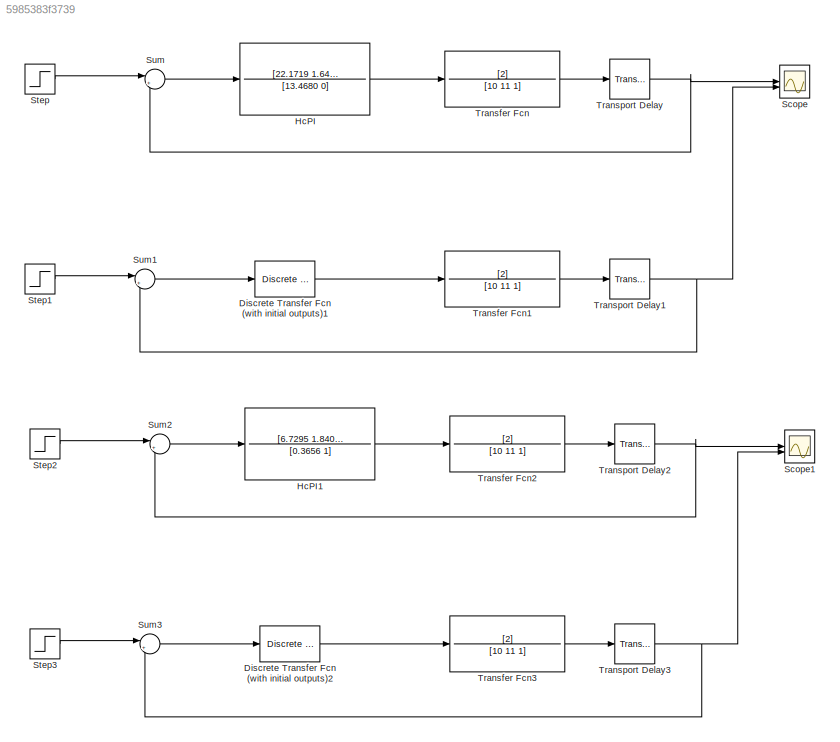
MODEL slx_5985383f3739
KIND model
CONFIG AbsTol = auto
CONFIG EnableMultiTasking = off
CONFIG FixedStep = auto
CONFIG MaxStep = auto
CONFIG MinStep = auto
CONFIG RelTol = 1e-3
CONFIG SampleTimeConstraint = Unconstrained
CONFIG SolverName = VariableStepAuto
CONFIG StartTime = 0.0
CONFIG StopTime = 50
BLOCK [Reference] Discrete Transfer Fcn (with initial outputs)1  REF=simulink_extras/Additional
Discrete/Discrete
Transfer Fcn
(with initial outputs)
  SourceBlock = simulink_extras/Additional\nDiscrete/Discrete\nTransfer Fcn\n(with initial outputs)
  SourceType = Discrete Transfer Function with Initial Outputs
BLOCK [Reference] Discrete Transfer Fcn (with initial outputs)2  REF=simulink_extras/Additional
Discrete/Discrete
Transfer Fcn
(with initial outputs)
  SourceBlock = simulink_extras/Additional\nDiscrete/Discrete\nTransfer Fcn\n(with initial outputs)
  SourceType = Discrete Transfer Function with Initial Outputs
BLOCK [TransferFcn] HcPI
  Denominator = [13.4680 0]
  Numerator = [22.1719 1.6463]
BLOCK [TransferFcn] HcPI1
  Denominator = [0.3656 1]
  Numerator = [6.7295 1.8408]
BLOCK [Scope] Scope
  Floating = off
  NumInputPorts = 2
  ScopeSpecificationString = Simulink.scopes.TimeScopeBlockCfg('CurrentConfiguration', extmgr.ConfigurationSet(extmgr.Configuration('Core','General UI',true),extmgr.Configuration('Core','Source UI',true),extmgr.Configuration('Sources','WiredSimulink',true),extmgr.Configuration('Visuals','Time Domain',true,'SerializedDisplays',{struct('MinYLimReal','-0.13382','MaxYLimReal','1.20434','YLabelReal','','MinYLimMag','0.00000','MaxY...<+1410ch>
BLOCK [Scope] Scope1
  Floating = off
  NumInputPorts = 2
  ScopeSpecificationString = Simulink.scopes.TimeScopeBlockCfg('CurrentConfiguration', extmgr.ConfigurationSet(extmgr.Configuration('Core','General UI',true),extmgr.Configuration('Core','Source UI',true),extmgr.Configuration('Sources','WiredSimulink',true,'DataLoggingVariableName','ScopeData1'),extmgr.Configuration('Visuals','Time Domain',true,'SerializedDisplays',{struct('MinYLimReal','-0.15083','MaxYLimReal','1.35745','YLab...<+1449ch>
BLOCK [Step] Step
  SampleTime = 0
BLOCK [Step] Step1
  SampleTime = 0
BLOCK [Step] Step2
  SampleTime = 0
BLOCK [Step] Step3
  SampleTime = 0
BLOCK [Sum] Sum
  Inputs = |+-
BLOCK [Sum] Sum1
  Inputs = |+-
BLOCK [Sum] Sum2
  Inputs = |+-
BLOCK [Sum] Sum3
  Inputs = |+-
BLOCK [TransferFcn] Transfer Fcn
  Denominator = [10 11 1]
  Numerator = [2]
BLOCK [TransferFcn] Transfer Fcn1
  Denominator = [10 11 1]
  Numerator = [2]
BLOCK [TransferFcn] Transfer Fcn2
  Denominator = [10 11 1]
  Numerator = [2]
BLOCK [TransferFcn] Transfer Fcn3
  Denominator = [10 11 1]
  Numerator = [2]
BLOCK [TransportDelay] Transport Delay
BLOCK [TransportDelay] Transport Delay1
BLOCK [TransportDelay] Transport Delay2
BLOCK [TransportDelay] Transport Delay3
LINE Discrete Transfer Fcn (with initial outputs)1:1 -> Transfer Fcn1:1
LINE Discrete Transfer Fcn (with initial outputs)2:1 -> Transfer Fcn3:1
LINE HcPI1:1 -> Transfer Fcn2:1
LINE HcPI:1 -> Transfer Fcn:1
LINE Step1:1 -> Sum1:1
LINE Step2:1 -> Sum2:1
LINE Step3:1 -> Sum3:1
LINE Step:1 -> Sum:1
LINE Sum1:1 -> Discrete Transfer Fcn (with initial outputs)1:1
LINE Sum2:1 -> HcPI1:1
LINE Sum3:1 -> Discrete Transfer Fcn (with initial outputs)2:1
LINE Sum:1 -> HcPI:1
LINE Transfer Fcn1:1 -> Transport Delay1:1
LINE Transfer Fcn2:1 -> Transport Delay2:1
LINE Transfer Fcn3:1 -> Transport Delay3:1
LINE Transfer Fcn:1 -> Transport Delay:1
NET Transport Delay1:1 -> Scope:2, Sum1:2
NET Transport Delay2:1 -> Scope1:1, Sum2:2
NET Transport Delay3:1 -> Scope1:2, Sum3:2
NET Transport Delay:1 -> Scope:1, Sum:2
note: NET lines group one-source signal fan-out (src -> all destinations, sorted); 1:1 wires keep LINE
